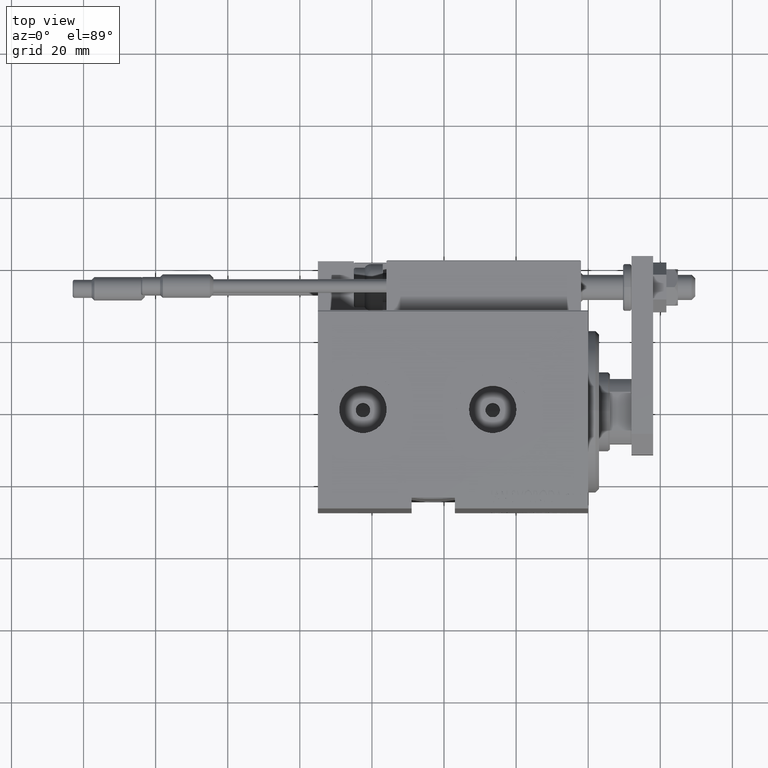
[diagram: clean part render]
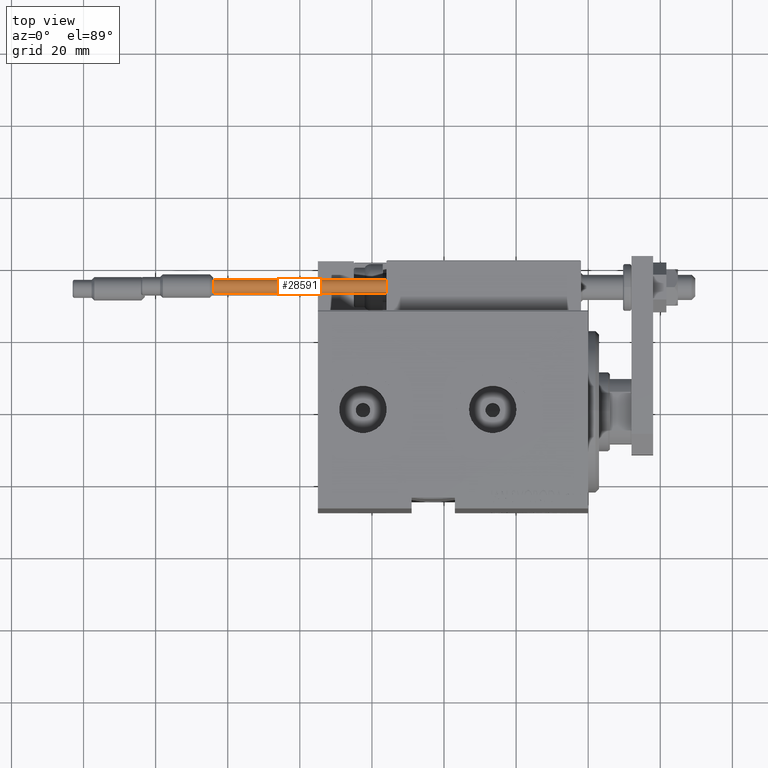
[diagram: same view with one face highlighted and labeled with its STEP entity id]
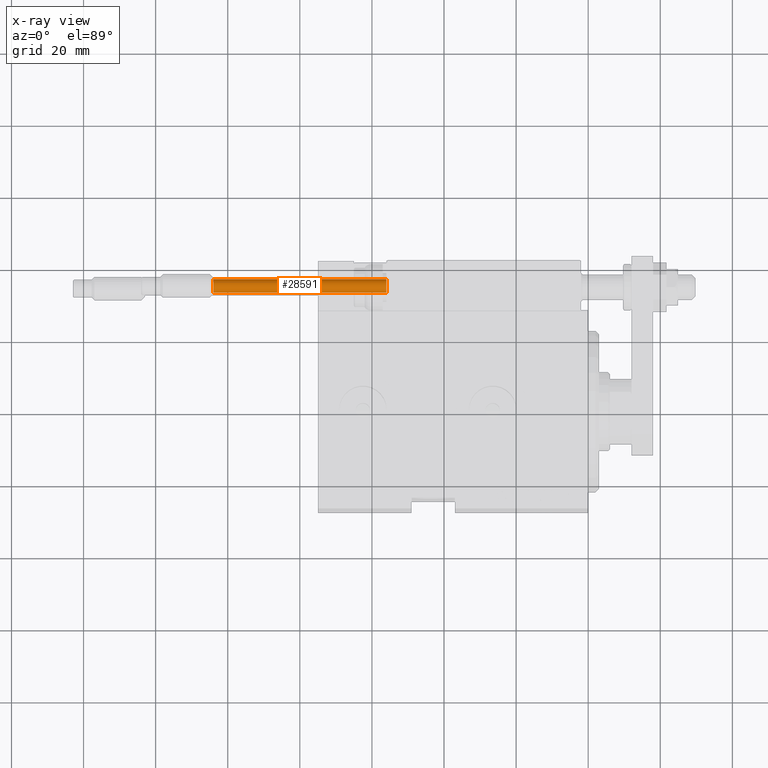
[diagram: x-ray of the same camera — body ghosted, the highlighted face saturated]
A machine part, top view. The second image highlights one B-rep face of the part: STEP entity #28591.
The next image is the same camera in x-ray: the body ghosted, the highlighted face saturated — about 0% of this face is hidden behind the body in this view.
In plain terms, the highlighted cylindrical surface (edge-blend (fillet) strip) has radius 1.9 mm, axis along (1, 0, -0).
Its self-contained STEP definition (entity closure, byte-faithful):
#69 = ORIENTED_EDGE ( 'NONE', *, *, #20767, .F. ) ;
#183 = DIRECTION ( 'NONE',  ( -1.000000000000000000, 0.000000000000000000, 0.000000000000000000 ) ) ;
#1201 = DIRECTION ( 'NONE',  ( -0.000000000000000000, -0.000000000000000000, -1.000000000000000000 ) ) ;
#1532 = AXIS2_PLACEMENT_3D ( 'NONE', #27397, #32054, #183 ) ;
#3421 = CARTESIAN_POINT ( 'NONE',  ( 0.000000000000000000, 0.000000000000000000, 48.00000000000000000 ) ) ;
#4594 = CYLINDRICAL_SURFACE ( 'NONE', #1532, 1.899999999999999467 ) ;
#7451 = FACE_OUTER_BOUND ( 'NONE', #27432, .T. ) ;
#8989 = CARTESIAN_POINT ( 'NONE',  ( 1.899999999999999467, 2.326828918379970872E-16, 48.00000000000000000 ) ) ;
#9893 = CARTESIAN_POINT ( 'NONE',  ( -1.899999999999999467, 0.000000000000000000, 48.00000000000000000 ) ) ;
#11682 = EDGE_CURVE ( 'NONE', #35820, #23940, #35849, .T. ) ;
#11972 = EDGE_CURVE ( 'NONE', #23940, #47820, #31744, .T. ) ;
#13785 = DIRECTION ( 'NONE',  ( -0.000000000000000000, -0.000000000000000000, -1.000000000000000000 ) ) ;
#16892 = VECTOR ( 'NONE', #1201, 1000.000000000000000 ) ;
#17423 = CARTESIAN_POINT ( 'NONE',  ( -1.899999999999999467, 0.000000000000000000, 48.00000000000000000 ) ) ;
#18465 = DIRECTION ( 'NONE',  ( 1.000000000000000000, 0.000000000000000000, 0.000000000000000000 ) ) ;
#19230 = DIRECTION ( 'NONE',  ( 0.000000000000000000, 0.000000000000000000, 1.000000000000000000 ) ) ;
#20767 = EDGE_CURVE ( 'NONE', #35820, #29494, #41843, .T. ) ;
#20904 = CARTESIAN_POINT ( 'NONE',  ( 1.899999999999999467, 2.326828918379970872E-16, 48.00000000000000000 ) ) ;
#23940 = VERTEX_POINT ( 'NONE', #33961 ) ;
#24095 = ORIENTED_EDGE ( 'NONE', *, *, #11972, .T. ) ;
#24285 = VECTOR ( 'NONE', #13785, 1000.000000000000000 ) ;
#24457 = CARTESIAN_POINT ( 'NONE',  ( 1.899999999999999467, 2.326828918379970872E-16, 0.000000000000000000 ) ) ;
#27397 = CARTESIAN_POINT ( 'NONE',  ( 0.000000000000000000, 0.000000000000000000, 48.00000000000000000 ) ) ;
#27432 = EDGE_LOOP ( 'NONE', ( #28553, #69, #33885, #24095 ) ) ;
#28553 = ORIENTED_EDGE ( 'NONE', *, *, #44046, .F. ) ;
#28591 = ADVANCED_FACE ( 'NONE', ( #7451 ), #4594, .T. ) ;
#29494 = VERTEX_POINT ( 'NONE', #8989 ) ;
#31744 = CIRCLE ( 'NONE', #43307, 1.899999999999999467 ) ;
#32054 = DIRECTION ( 'NONE',  ( -0.000000000000000000, -0.000000000000000000, -1.000000000000000000 ) ) ;
#33885 = ORIENTED_EDGE ( 'NONE', *, *, #11682, .T. ) ;
#33961 = CARTESIAN_POINT ( 'NONE',  ( -1.899999999999999467, 0.000000000000000000, 0.000000000000000000 ) ) ;
#35820 = VERTEX_POINT ( 'NONE', #17423 ) ;
#35849 = LINE ( 'NONE', #9893, #24285 ) ;
#38652 = DIRECTION ( 'NONE',  ( 0.000000000000000000, 0.000000000000000000, 1.000000000000000000 ) ) ;
#41843 = CIRCLE ( 'NONE', #50954, 1.899999999999999467 ) ;
#42528 = CARTESIAN_POINT ( 'NONE',  ( 0.000000000000000000, 0.000000000000000000, 0.000000000000000000 ) ) ;
#43307 = AXIS2_PLACEMENT_3D ( 'NONE', #42528, #38652, #50541 ) ;
#44046 = EDGE_CURVE ( 'NONE', #29494, #47820, #44959, .T. ) ;
#44959 = LINE ( 'NONE', #20904, #16892 ) ;
#47820 = VERTEX_POINT ( 'NONE', #24457 ) ;
#50541 = DIRECTION ( 'NONE',  ( 1.000000000000000000, 0.000000000000000000, 0.000000000000000000 ) ) ;
#50954 = AXIS2_PLACEMENT_3D ( 'NONE', #3421, #19230, #18465 ) ;